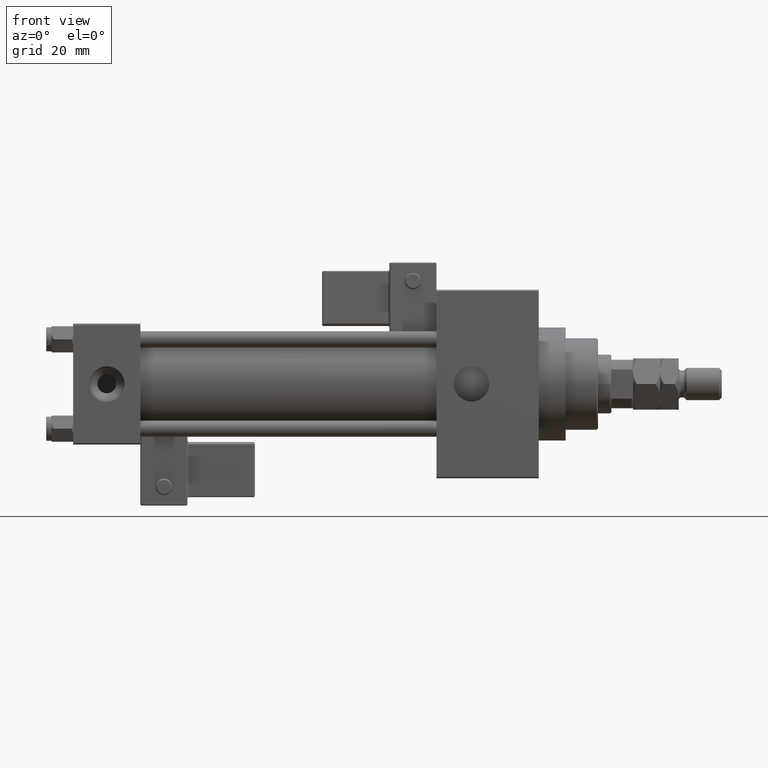
[diagram: clean part render]
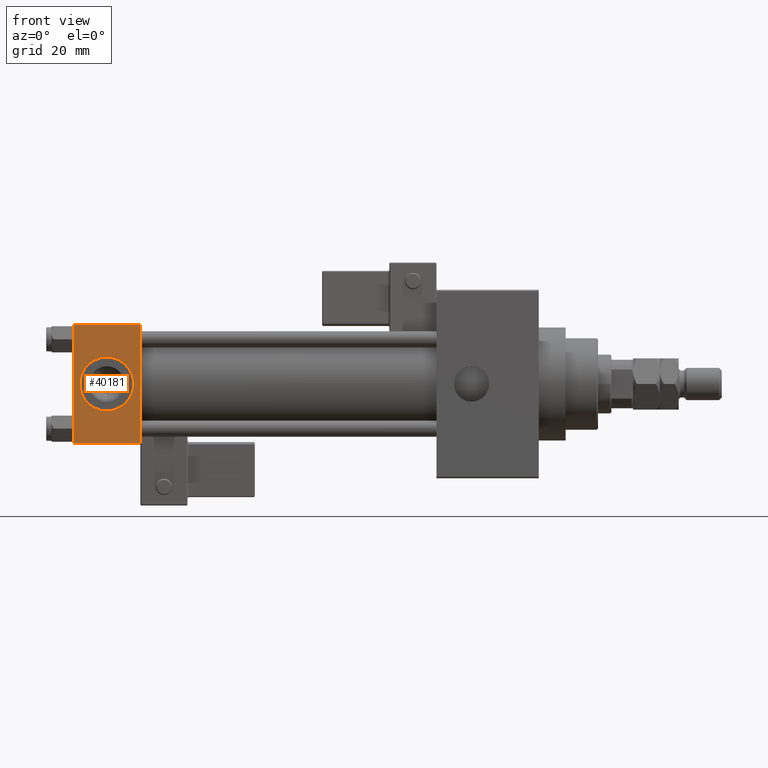
[diagram: same view with one face highlighted and labeled with its STEP entity id]
A machine part, front view. The second image highlights one B-rep face of the part: STEP entity #40181.
In plain terms, the highlighted planar face has unit normal (0, 1, 0).
Its self-contained STEP definition (entity closure, byte-faithful):
#3156 = VERTEX_POINT ( 'NONE', #30391 ) ;
#4094 = VECTOR ( 'NONE', #43860, 1000.000000000000000 ) ;
#4392 = ORIENTED_EDGE ( 'NONE', *, *, #22870, .F. ) ;
#4863 = LINE ( 'NONE', #45556, #36287 ) ;
#5979 = PLANE ( 'NONE',  #15797 ) ;
#7331 = ORIENTED_EDGE ( 'NONE', *, *, #15374, .F. ) ;
#8656 = EDGE_CURVE ( 'NONE', #21832, #3156, #15740, .T. ) ;
#8878 = DIRECTION ( 'NONE',  ( -1.000000000000000000, 0.000000000000000000, 0.000000000000000000 ) ) ;
#11692 = CARTESIAN_POINT ( 'NONE',  ( 25.00000000000000000, -22.50000000000000000, -21.99999999999998579 ) ) ;
#13991 = VERTEX_POINT ( 'NONE', #46930 ) ;
#14420 = CARTESIAN_POINT ( 'NONE',  ( 12.50000000000000000, -22.50000000000000000, 0.000000000000000000 ) ) ;
#15374 = EDGE_CURVE ( 'NONE', #42419, #28414, #37878, .T. ) ;
#15740 = LINE ( 'NONE', #32069, #4094 ) ;
#15797 = AXIS2_PLACEMENT_3D ( 'NONE', #50419, #42643, #29808 ) ;
#16188 = EDGE_LOOP ( 'NONE', ( #34833, #21574, #21318, #33925 ) ) ;
#16351 = CARTESIAN_POINT ( 'NONE',  ( 0.000000000000000000, -22.50000000000000000, 22.00000000000000000 ) ) ;
#16805 = AXIS2_PLACEMENT_3D ( 'NONE', #18159, #49327, #29954 ) ;
#17748 = FACE_OUTER_BOUND ( 'NONE', #16188, .T. ) ;
#18159 = CARTESIAN_POINT ( 'NONE',  ( 12.50000000000000000, -22.50000000000000000, 0.000000000000000000 ) ) ;
#19367 = CIRCLE ( 'NONE', #16805, 9.999999999999996447 ) ;
#21318 = ORIENTED_EDGE ( 'NONE', *, *, #8656, .F. ) ;
#21574 = ORIENTED_EDGE ( 'NONE', *, *, #36001, .T. ) ;
#21832 = VERTEX_POINT ( 'NONE', #28631 ) ;
#22479 = VECTOR ( 'NONE', #28014, 1000.000000000000000 ) ;
#22870 = EDGE_CURVE ( 'NONE', #28414, #42419, #19367, .T. ) ;
#24515 = VECTOR ( 'NONE', #44621, 1000.000000000000000 ) ;
#28014 = DIRECTION ( 'NONE',  ( 1.000000000000000000, 0.000000000000000000, 0.000000000000000000 ) ) ;
#28414 = VERTEX_POINT ( 'NONE', #45423 ) ;
#28553 = CARTESIAN_POINT ( 'NONE',  ( 0.000000000000000000, -22.50000000000000000, 22.50000000000000000 ) ) ;
#28631 = CARTESIAN_POINT ( 'NONE',  ( 25.00000000000000000, -22.50000000000000000, 22.00000000000000000 ) ) ;
#29808 = DIRECTION ( 'NONE',  ( 0.000000000000000000, -0.000000000000000000, 1.000000000000000000 ) ) ;
#29954 = DIRECTION ( 'NONE',  ( 0.000000000000000000, 0.000000000000000000, -1.000000000000000000 ) ) ;
#30391 = CARTESIAN_POINT ( 'NONE',  ( 25.00000000000000000, -22.50000000000000000, -21.99999999999997158 ) ) ;
#32069 = CARTESIAN_POINT ( 'NONE',  ( 25.00000000000000000, -22.50000000000000000, 22.50000000000000000 ) ) ;
#33925 = ORIENTED_EDGE ( 'NONE', *, *, #38519, .T. ) ;
#34833 = ORIENTED_EDGE ( 'NONE', *, *, #46895, .T. ) ;
#35814 = DIRECTION ( 'NONE',  ( 0.000000000000000000, 0.000000000000000000, -1.000000000000000000 ) ) ;
#35979 = EDGE_LOOP ( 'NONE', ( #4392, #7331 ) ) ;
#36001 = EDGE_CURVE ( 'NONE', #13991, #3156, #48365, .T. ) ;
#36287 = VECTOR ( 'NONE', #8878, 1000.000000000000000 ) ;
#37641 = CARTESIAN_POINT ( 'NONE',  ( 12.50000000000000178, -22.50000000000000000, 9.999999999999996447 ) ) ;
#37833 = FACE_BOUND ( 'NONE', #35979, .T. ) ;
#37878 = CIRCLE ( 'NONE', #40456, 9.999999999999996447 ) ;
#38519 = EDGE_CURVE ( 'NONE', #21832, #45296, #4863, .T. ) ;
#40181 = ADVANCED_FACE ( 'NONE', ( #37833, #17748 ), #5979, .F. ) ;
#40456 = AXIS2_PLACEMENT_3D ( 'NONE', #14420, #47873, #35814 ) ;
#40600 = LINE ( 'NONE', #28553, #24515 ) ;
#42419 = VERTEX_POINT ( 'NONE', #37641 ) ;
#42643 = DIRECTION ( 'NONE',  ( -0.000000000000000000, 1.000000000000000000, 0.000000000000000000 ) ) ;
#43860 = DIRECTION ( 'NONE',  ( 0.000000000000000000, 0.000000000000000000, -1.000000000000000000 ) ) ;
#44621 = DIRECTION ( 'NONE',  ( 0.000000000000000000, 0.000000000000000000, -1.000000000000000000 ) ) ;
#45296 = VERTEX_POINT ( 'NONE', #16351 ) ;
#45423 = CARTESIAN_POINT ( 'NONE',  ( 12.50000000000000000, -22.50000000000000000, -9.999999999999996447 ) ) ;
#45556 = CARTESIAN_POINT ( 'NONE',  ( 25.00000000000000000, -22.50000000000000000, 22.00000000000000000 ) ) ;
#46895 = EDGE_CURVE ( 'NONE', #45296, #13991, #40600, .T. ) ;
#46930 = CARTESIAN_POINT ( 'NONE',  ( 0.000000000000000000, -22.50000000000000000, -21.99999999999997158 ) ) ;
#47873 = DIRECTION ( 'NONE',  ( 0.000000000000000000, -1.000000000000000000, -8.673617379884036705E-17 ) ) ;
#48365 = LINE ( 'NONE', #11692, #22479 ) ;
#49327 = DIRECTION ( 'NONE',  ( 0.000000000000000000, -1.000000000000000000, -8.673617379884036705E-17 ) ) ;
#50419 = CARTESIAN_POINT ( 'NONE',  ( 25.00000000000000000, -22.50000000000000000, 22.50000000000000000 ) ) ;